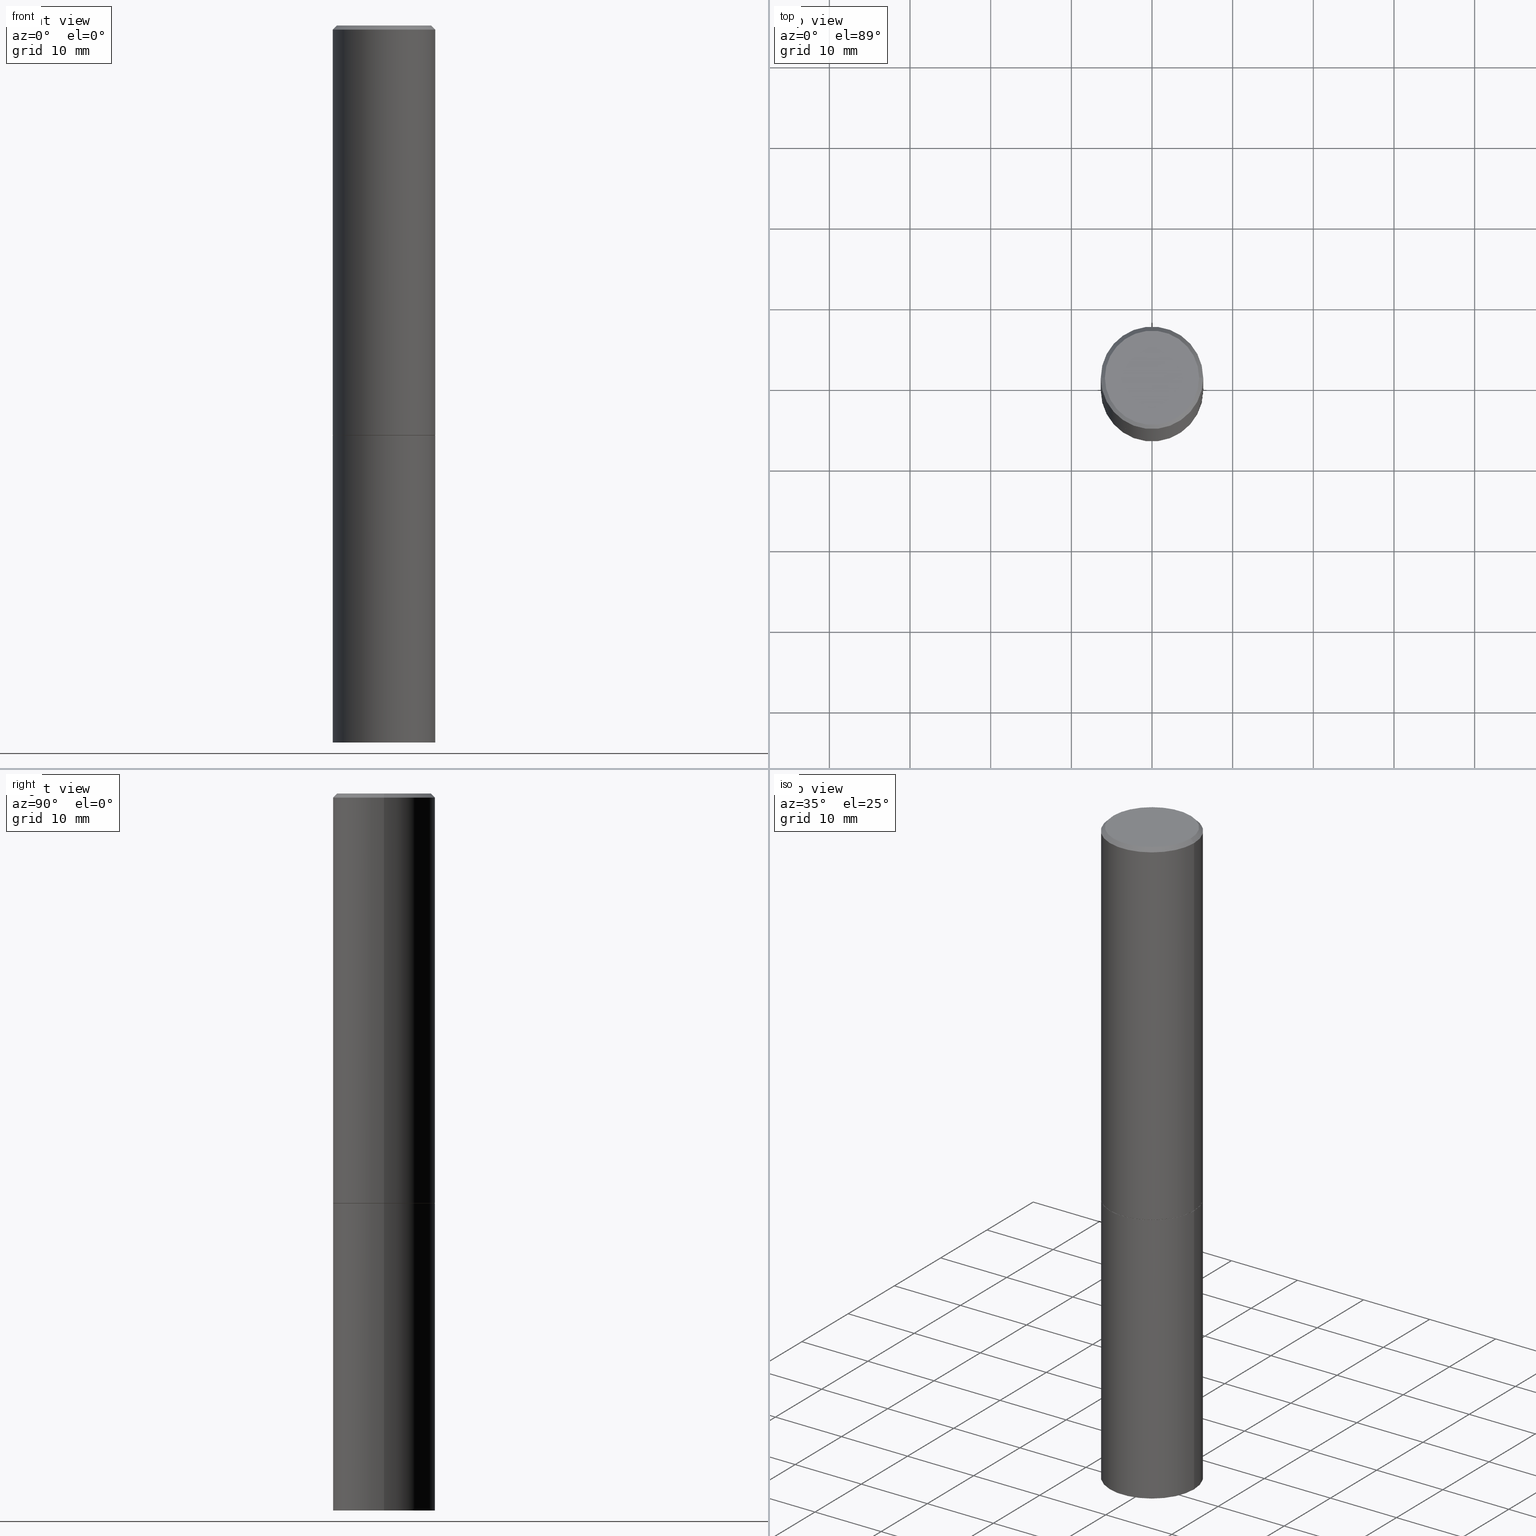
[diagram: canonical four-view strip — front | top / right | iso, engineering-drawing reading convention]
A machine part, canonical four-view strip (front | top / right | iso — engineering-drawing reading convention). The complete STEP part file that produces these views, byte-faithful:
ISO-10303-21;
HEADER;
FILE_DESCRIPTION (( 'STEP AP203' ),
    '1' );
FILE_NAME ('90041.STEP',
    '2024-03-01T02:27:21',
    ( '' ),
    ( '' ),
    'SwSTEP 2.0',
    'SolidWorks 2023',
    '' );
FILE_SCHEMA (( 'CONFIG_CONTROL_DESIGN' ));
ENDSEC;

DATA;
#1 = DIRECTION ( 'NONE',  ( -1.000000000000000000, 6.982962677686265922E-15, -4.876176775795935793E-29 ) ) ;
#2 = APPROVAL ( #315, 'UNSPECIFIED' ) ;
#3 = LINE ( 'NONE', #187, #193 ) ;
#4 = MECHANICAL_CONTEXT ( 'NONE', #62, 'mechanical' ) ;
#5 = CARTESIAN_POINT ( 'NONE',  ( 0.2500000000000000000, -1.745740669421566678E-15, 1.219044193948983948E-29 ) ) ;
#6 = LINE ( 'NONE', #67, #364 ) ;
#7 = CALENDAR_DATE ( 2024, 29, 2 ) ;
#8 = VECTOR ( 'NONE', #93, 39.37007874015748143 ) ;
#9 = CARTESIAN_POINT ( 'NONE',  ( 4.890937612370272073E-29, -6.982962677686288799E-15, -1.999999999999999334 ) ) ;
#10 = ADVANCED_FACE ( 'NONE', ( #282 ), #274, .T. ) ;
#11 = EDGE_CURVE ( 'NONE', #362, #357, #325, .T. ) ;
#12 = AXIS2_PLACEMENT_3D ( 'NONE', #9, #156, #132 ) ;
#13 = AXIS2_PLACEMENT_3D ( 'NONE', #30, #343, #95 ) ;
#14 = ORIENTED_EDGE ( 'NONE', *, *, #331, .F. ) ;
#15 = DIRECTION ( 'NONE',  ( -2.445468806185136597E-29, 3.491481338843145583E-15, 1.000000000000000000 ) ) ;
#16 = DIMENSIONAL_EXPONENTS ( 1.000000000000000000, 0.000000000000000000, 0.000000000000000000, 0.000000000000000000, 0.000000000000000000, 0.000000000000000000, 0.000000000000000000 ) ;
#17 = EDGE_CURVE ( 'NONE', #80, #79, #243, .T. ) ;
#18 = PERSON_AND_ORGANIZATION ( #59, #35 ) ;
#19 = ORIENTED_EDGE ( 'NONE', *, *, #331, .T. ) ;
#20 = EDGE_CURVE ( 'NONE', #90, #362, #123, .T. ) ;
#21 = ORIENTED_EDGE ( 'NONE', *, *, #271, .F. ) ;
#22 = VECTOR ( 'NONE', #262, 39.37007874015748143 ) ;
#23 = CARTESIAN_POINT ( 'NONE',  ( -0.2489999999999999991, -5.208412811295418518E-15, -1.999999999999999334 ) ) ;
#24 = APPROVAL_DATE_TIME ( #296, #220 ) ;
#25 = ORIENTED_EDGE ( 'NONE', *, *, #94, .T. ) ;
#26 = CC_DESIGN_PERSON_AND_ORGANIZATION_ASSIGNMENT ( #285, #186, ( #320 ) ) ;
#27 = DIRECTION ( 'NONE',  ( -1.000000000000000000, 6.982962677686266711E-15, 0.000000000000000000 ) ) ;
#28 = DIRECTION ( 'NONE',  ( -2.445468806185136597E-29, 3.491481338843145583E-15, 1.000000000000000000 ) ) ;
#29 = ORIENTED_EDGE ( 'NONE', *, *, #305, .T. ) ;
#30 = CARTESIAN_POINT ( 'NONE',  ( 0.000000000000000000, 0.000000000000000000, 0.000000000000000000 ) ) ;
#31 = ORIENTED_EDGE ( 'NONE', *, *, #288, .F. ) ;
#32 =( NAMED_UNIT ( * ) PLANE_ANGLE_UNIT ( ) SI_UNIT ( $, .RADIAN. ) );
#33 = APPLICATION_PROTOCOL_DEFINITION ( 'international standard', 'config_control_design', 1994, #62 ) ;
#34 = CARTESIAN_POINT ( 'NONE',  ( 0.000000000000000000, 0.000000000000000000, 0.000000000000000000 ) ) ;
#35 = ORGANIZATION ( 'UNSPECIFIED', 'UNSPECIFIED', '' ) ;
#36 = CC_DESIGN_PERSON_AND_ORGANIZATION_ASSIGNMENT ( #154, #312, ( #344 ) ) ;
#37 = AXIS2_PLACEMENT_3D ( 'NONE', #155, #183, #240 ) ;
#38 = LINE ( 'NONE', #194, #139 ) ;
#39 = ADVANCED_FACE ( 'NONE', ( #332 ), #279, .F. ) ;
#40 = CIRCLE ( 'NONE', #313, 0.2299999999999997324 ) ;
#41 = ORIENTED_EDGE ( 'NONE', *, *, #96, .T. ) ;
#42 = EDGE_CURVE ( 'NONE', #79, #80, #334, .T. ) ;
#43 = DIRECTION ( 'NONE',  ( -2.445468806185136597E-29, 3.491481338843145583E-15, 1.000000000000000000 ) ) ;
#44 = EDGE_LOOP ( 'NONE', ( #114, #363, #19, #265 ) ) ;
#45 = ORIENTED_EDGE ( 'NONE', *, *, #17, .F. ) ;
#46 = CARTESIAN_POINT ( 'NONE',  ( 0.2500000000000000000, -8.725211865769012469E-15, -1.998999999999999666 ) ) ;
#47 = PRODUCT_DEFINITION_SHAPE ( 'NONE', 'NONE',  #344 ) ;
#48 = CIRCLE ( 'NONE', #135, 0.2500000000000000000 ) ;
#49 = AXIS2_PLACEMENT_3D ( 'NONE', #212, #335, #309 ) ;
#50 = ORIENTED_EDGE ( 'NONE', *, *, #305, .F. ) ;
#51 = PERSON_AND_ORGANIZATION_ROLE ( 'classification_officer' ) ;
#52 = EDGE_LOOP ( 'NONE', ( #137, #324 ) ) ;
#53 = APPROVAL_DATE_TIME ( #89, #2 ) ;
#54 = DIRECTION ( 'NONE',  ( 1.000000000000000000, -6.982962677686266711E-15, 0.000000000000000000 ) ) ;
#55 = APPLICATION_PROTOCOL_DEFINITION ( 'international standard', 'config_control_design', 1994, #179 ) ;
#56 = ORIENTED_EDGE ( 'NONE', *, *, #61, .T. ) ;
#57 = FACE_OUTER_BOUND ( 'NONE', #177, .T. ) ;
#58 = UNCERTAINTY_MEASURE_WITH_UNIT (LENGTH_MEASURE( 1.000000000000000082E-05 ), #173, 'distance_accuracy_value', 'NONE');
#59 = PERSON ( 'UNSPECIFIED', 'UNSPECIFIED', 'UNSPECIFIED', ('UNSPECIFIED'), ('UNSPECIFIED'), ('UNSPECIFIED') ) ;
#60 = AXIS2_PLACEMENT_3D ( 'NONE', #338, #336, #299 ) ;
#61 = EDGE_CURVE ( 'NONE', #311, #365, #301, .T. ) ;
#62 = APPLICATION_CONTEXT ( 'configuration controlled 3d designs of mechanical parts and assemblies' ) ;
#63 = CC_DESIGN_PERSON_AND_ORGANIZATION_ASSIGNMENT ( #181, #208, ( #320 ) ) ;
#64 = AXIS2_PLACEMENT_3D ( 'NONE', #126, #86, #54 ) ;
#65 = CC_DESIGN_PERSON_AND_ORGANIZATION_ASSIGNMENT ( #280, #51, ( #70 ) ) ;
#66 = DIRECTION ( 'NONE',  ( 1.000000000000000000, -6.982962677686266711E-15, 0.000000000000000000 ) ) ;
#67 = CARTESIAN_POINT ( 'NONE',  ( -0.2499999999999998890, 1.776356839400249676E-15, -1.229733772563726025E-29 ) ) ;
#68 = CARTESIAN_POINT ( 'NONE',  ( 1.745740669421652072E-15, 0.2499999999999877598, -3.500000000000000888 ) ) ;
#69 = AXIS2_PLACEMENT_3D ( 'NONE', #359, #112, #144 ) ;
#70 = SECURITY_CLASSIFICATION ( '', '', #118 ) ;
#71 = ADVANCED_FACE ( 'NONE', ( #241 ), #233, .T. ) ;
#72 = VERTEX_POINT ( 'NONE', #200 ) ;
#73 = DIRECTION ( 'NONE',  ( 1.000000000000000000, -6.982962677686270655E-15, 0.000000000000000000 ) ) ;
#74 = CALENDAR_DATE ( 2024, 29, 2 ) ;
#75 = AXIS2_PLACEMENT_3D ( 'NONE', #246, #289, #92 ) ;
#76 = APPROVAL_PERSON_ORGANIZATION ( #125, #227, #130 ) ;
#77 = ORIENTED_EDGE ( 'NONE', *, *, #174, .F. ) ;
#78 = FACE_OUTER_BOUND ( 'NONE', #52, .T. ) ;
#79 = VERTEX_POINT ( 'NONE', #23 ) ;
#80 = VERTEX_POINT ( 'NONE', #360 ) ;
#81 = VERTEX_POINT ( 'NONE', #261 ) ;
#82 = ORIENTED_EDGE ( 'NONE', *, *, #42, .F. ) ;
#83 = COORDINATED_UNIVERSAL_TIME_OFFSET ( 5, 0, .BEHIND. ) ;
#84 = EDGE_LOOP ( 'NONE', ( #50, #172 ) ) ;
#85 = AXIS2_PLACEMENT_3D ( 'NONE', #319, #15, #134 ) ;
#86 = DIRECTION ( 'NONE',  ( -2.445468806185136597E-29, 3.491481338843145583E-15, 1.000000000000000000 ) ) ;
#87 = CARTESIAN_POINT ( 'NONE',  ( 0.2499999999999998057, -1.784954126219744611E-15, -0.02000000000000006287 ) ) ;
#88 = ORIENTED_EDGE ( 'NONE', *, *, #216, .T. ) ;
#89 = DATE_AND_TIME ( #337, #353 ) ;
#90 = VERTEX_POINT ( 'NONE', #239 ) ;
#91 = CARTESIAN_POINT ( 'NONE',  ( -0.2500000000000000000, -7.825216842418397817E-15, -1.999999999999999778 ) ) ;
#92 = DIRECTION ( 'NONE',  ( 1.000000000000000000, -6.982962677686266711E-15, 4.876176775795935793E-29 ) ) ;
#93 = DIRECTION ( 'NONE',  ( 0.7071067811865473507, -7.319954787623256045E-15, -0.7071067811865476838 ) ) ;
#94 = EDGE_CURVE ( 'NONE', #365, #207, #103, .T. ) ;
#95 = DIRECTION ( 'NONE',  ( 1.000000000000000000, 0.000000000000000000, 0.000000000000000000 ) ) ;
#96 = EDGE_CURVE ( 'NONE', #81, #311, #40, .T. ) ;
#97 = AXIS2_PLACEMENT_3D ( 'NONE', #201, #266, #149 ) ;
#98 = CARTESIAN_POINT ( 'NONE',  ( 4.890937612370272073E-29, -6.982962677686288799E-15, -1.999999999999999334 ) ) ;
#99 = PERSON_AND_ORGANIZATION ( #59, #35 ) ;
#100 = PRODUCT_RELATED_PRODUCT_CATEGORY ( 'detail', '', ( #339 ) ) ;
#101 = CARTESIAN_POINT ( 'NONE',  ( 0.2499999999999998890, -1.745740669421565889E-15, 1.219044193948983388E-29 ) ) ;
#102 = DIRECTION ( 'NONE',  ( 2.438088387897960049E-29, -3.491481338843145188E-15, -1.000000000000000000 ) ) ;
#103 = CIRCLE ( 'NONE', #49, 0.2499999999999998057 ) ;
#104 = DIRECTION ( 'NONE',  ( 1.000000000000000000, -6.982962677686266711E-15, 0.000000000000000000 ) ) ;
#105 = APPROVAL_PERSON_ORGANIZATION ( #18, #220, #236 ) ;
#106 = CIRCLE ( 'NONE', #60, 0.2499999999999998057 ) ;
#107 = DIRECTION ( 'NONE',  ( -2.438088387897960049E-29, 3.491481338843145188E-15, 1.000000000000000000 ) ) ;
#108 = CARTESIAN_POINT ( 'NONE',  ( 4.888492143564087030E-29, -6.979471196347446580E-15, -1.998999999999999666 ) ) ;
#109 = CLOSED_SHELL ( 'NONE', ( #143, #163, #303, #318 ) ) ;
#110 = ORIENTED_EDGE ( 'NONE', *, *, #165, .F. ) ;
#111 = CARTESIAN_POINT ( 'NONE',  ( -0.2499999999999998057, 1.675911042644702196E-15, -0.02000000000000006287 ) ) ;
#112 = DIRECTION ( 'NONE',  ( -2.445468806185136597E-29, 3.491481338843145583E-15, 1.000000000000000000 ) ) ;
#113 = ORIENTED_EDGE ( 'NONE', *, *, #61, .F. ) ;
#114 = ORIENTED_EDGE ( 'NONE', *, *, #20, .F. ) ;
#115 = CC_DESIGN_PERSON_AND_ORGANIZATION_ASSIGNMENT ( #99, #287, ( #339 ) ) ;
#116 = DIRECTION ( 'NONE',  ( -2.445468806185136877E-29, 3.491481338843145188E-15, 1.000000000000000000 ) ) ;
#117 = CARTESIAN_POINT ( 'NONE',  ( 0.2500000000000000000, -8.728703347107857054E-15, -1.999999999999999778 ) ) ;
#118 = SECURITY_CLASSIFICATION_LEVEL ( 'unclassified' ) ;
#119 = EDGE_LOOP ( 'NONE', ( #77, #228, #142, #31 ) ) ;
#120 = VECTOR ( 'NONE', #222, 39.37007874015748143 ) ;
#121 = COORDINATED_UNIVERSAL_TIME_OFFSET ( 5, 0, .BEHIND. ) ;
#122 = MANIFOLD_SOLID_BREP ( 'Body-Move/Copy2[2]', #267 ) ;
#123 = LINE ( 'NONE', #259, #256 ) ;
#124 = LINE ( 'NONE', #5, #22 ) ;
#125 = PERSON_AND_ORGANIZATION ( #59, #35 ) ;
#126 = CARTESIAN_POINT ( 'NONE',  ( 4.890937612370272073E-29, -6.982962677686288799E-15, -1.999999999999999334 ) ) ;
#127 = COORDINATED_UNIVERSAL_TIME_OFFSET ( 5, 0, .BEHIND. ) ;
#128 = FACE_OUTER_BOUND ( 'NONE', #260, .T. ) ;
#129 = MANIFOLD_SOLID_BREP ( 'Body-Move/Copy2[1]', #109 ) ;
#130 = APPROVAL_ROLE ( '' ) ;
#131 = LOCAL_TIME ( 21, 27, 21.00000000000000000, #83 ) ;
#132 = DIRECTION ( 'NONE',  ( 1.000000000000000000, -6.982962677686266711E-15, 0.000000000000000000 ) ) ;
#133 = CONICAL_SURFACE ( 'NONE', #37, 0.2499999999999998057, 0.7853981633974480570 ) ;
#134 = DIRECTION ( 'NONE',  ( 1.000000000000000000, -6.982962677686266711E-15, 0.000000000000000000 ) ) ;
#135 = AXIS2_PLACEMENT_3D ( 'NONE', #161, #293, #66 ) ;
#136 = PLANE ( 'NONE',  #351 ) ;
#137 = ORIENTED_EDGE ( 'NONE', *, *, #159, .T. ) ;
#138 = CARTESIAN_POINT ( 'NONE',  ( 1.606081415867839292E-15, 0.2299999999999997324, -8.009064516888723911E-16 ) ) ;
#139 = VECTOR ( 'NONE', #321, 39.37007874015748143 ) ;
#140 = DIRECTION ( 'NONE',  ( -0.7071067811865473507, 2.468850131082255088E-15, -0.7071067811865476838 ) ) ;
#141 = DIRECTION ( 'NONE',  ( 1.000000000000000000, -6.982962677686266711E-15, 0.000000000000000000 ) ) ;
#142 = ORIENTED_EDGE ( 'NONE', *, *, #253, .T. ) ;
#143 = ADVANCED_FACE ( 'NONE', ( #128 ), #160, .T. ) ;
#144 = DIRECTION ( 'NONE',  ( 1.000000000000000000, -6.982962677686266711E-15, 4.876225828469314487E-29 ) ) ;
#145 = CARTESIAN_POINT ( 'NONE',  ( 4.890937612370272073E-29, -6.982962677686288799E-15, -1.999999999999999334 ) ) ;
#146 = DIRECTION ( 'NONE',  ( 1.000000000000000000, -6.982962677686266711E-15, 4.876176775795935793E-29 ) ) ;
#147 = ORIENTED_EDGE ( 'NONE', *, *, #199, .F. ) ;
#148 = DIRECTION ( 'NONE',  ( 1.000000000000000000, -6.982962677686266711E-15, 0.000000000000000000 ) ) ;
#149 = DIRECTION ( 'NONE',  ( 1.000000000000000000, -6.982962677686270655E-15, 0.000000000000000000 ) ) ;
#150 = FACE_OUTER_BOUND ( 'NONE', #119, .T. ) ;
#151 = CONICAL_SURFACE ( 'NONE', #230, 0.2489999999999999991, 0.7853981633975507526 ) ;
#152 = CARTESIAN_POINT ( 'NONE',  ( -0.2499999999999998057, 1.675911042644702196E-15, -0.02000000000000006287 ) ) ;
#153 =( LENGTH_UNIT ( ) NAMED_UNIT ( * ) SI_UNIT ( $, .METRE. ) );
#154 = PERSON_AND_ORGANIZATION ( #59, #35 ) ;
#155 = CARTESIAN_POINT ( 'NONE',  ( 4.890937612370288923E-31, -6.982962677686312563E-17, -0.02000000000000006287 ) ) ;
#156 = DIRECTION ( 'NONE',  ( -2.445468806185136597E-29, 3.491481338843145583E-15, 1.000000000000000000 ) ) ;
#157 = AXIS2_PLACEMENT_3D ( 'NONE', #34, #221, #275 ) ;
#158 = LOCAL_TIME ( 21, 27, 21.00000000000000000, #340 ) ;
#159 = EDGE_CURVE ( 'NONE', #357, #362, #48, .T. ) ;
#160 = CYLINDRICAL_SURFACE ( 'NONE', #157, 0.2500000000000000000 ) ;
#161 = CARTESIAN_POINT ( 'NONE',  ( 4.890937612370272633E-29, -6.982962677686290376E-15, -1.999999999999999778 ) ) ;
#162 = CIRCLE ( 'NONE', #185, 0.2500000000000000000 ) ;
#163 = ADVANCED_FACE ( 'NONE', ( #247 ), #191, .T. ) ;
#164 = LOCAL_TIME ( 21, 27, 21.00000000000000000, #127 ) ;
#165 = EDGE_CURVE ( 'NONE', #307, #242, #248, .T. ) ;
#166 = FACE_OUTER_BOUND ( 'NONE', #263, .T. ) ;
#167 = DESIGN_CONTEXT ( 'detailed design', #179, 'design' ) ;
#168 = CIRCLE ( 'NONE', #346, 0.2500000000000000000 ) ;
#169 = EDGE_LOOP ( 'NONE', ( #354, #209, #254, #171 ) ) ;
#170 = CYLINDRICAL_SURFACE ( 'NONE', #75, 0.2499999999999998890 ) ;
#171 = ORIENTED_EDGE ( 'NONE', *, *, #249, .F. ) ;
#172 = ORIENTED_EDGE ( 'NONE', *, *, #190, .F. ) ;
#173 =( CONVERSION_BASED_UNIT ( 'INCH', #210 ) LENGTH_UNIT ( ) NAMED_UNIT ( #16 ) );
#174 = EDGE_CURVE ( 'NONE', #79, #242, #38, .T. ) ;
#175 = AXIS2_PLACEMENT_3D ( 'NONE', #298, #184, #27 ) ;
#176 = ORIENTED_EDGE ( 'NONE', *, *, #249, .T. ) ;
#177 = EDGE_LOOP ( 'NONE', ( #113, #281, #234, #295 ) ) ;
#178 = CARTESIAN_POINT ( 'NONE',  ( 0.2299999999999997324, -1.681434332853597433E-15, 4.268512490111905999E-18 ) ) ;
#179 = APPLICATION_CONTEXT ( 'configuration controlled 3d designs of mechanical parts and assemblies' ) ;
#180 = ORIENTED_EDGE ( 'NONE', *, *, #159, .F. ) ;
#181 = PERSON_AND_ORGANIZATION ( #59, #35 ) ;
#182 = CARTESIAN_POINT ( 'NONE',  ( -1.043851414335219820E-46, 1.490343170380447200E-32, 4.268512490100411279E-18 ) ) ;
#183 = DIRECTION ( 'NONE',  ( 2.445468806185136597E-29, -3.491481338843145583E-15, -1.000000000000000000 ) ) ;
#184 = DIRECTION ( 'NONE',  ( 2.445468806185136597E-29, -3.491481338843145583E-15, -1.000000000000000000 ) ) ;
#185 = AXIS2_PLACEMENT_3D ( 'NONE', #108, #355, #327 ) ;
#186 = PERSON_AND_ORGANIZATION_ROLE ( 'design_supplier' ) ;
#187 = CARTESIAN_POINT ( 'NONE',  ( 0.2489999999999999991, -8.721720384430169462E-15, -1.999999999999999334 ) ) ;
#188 = ADVANCED_FACE ( 'NONE', ( #166 ), #251, .F. ) ;
#189 = APPROVAL_PERSON_ORGANIZATION ( #211, #2, #308 ) ;
#190 = EDGE_CURVE ( 'NONE', #90, #72, #168, .T. ) ;
#191 = PLANE ( 'NONE',  #345 ) ;
#192 = DIRECTION ( 'NONE',  ( -2.445468806185136597E-29, 3.491481338843145583E-15, 1.000000000000000000 ) ) ;
#193 = VECTOR ( 'NONE', #273, 39.37007874015748143 ) ;
#194 = CARTESIAN_POINT ( 'NONE',  ( -0.2489999999999999991, -5.213711265643639342E-15, -1.999999999999999334 ) ) ;
#195 = CIRCLE ( 'NONE', #97, 0.2500000000000000000 ) ;
#196 =( GEOMETRIC_REPRESENTATION_CONTEXT ( 3 ) GLOBAL_UNCERTAINTY_ASSIGNED_CONTEXT ( ( #58 ) ) GLOBAL_UNIT_ASSIGNED_CONTEXT ( ( #173, #32, #326 ) ) REPRESENTATION_CONTEXT ( 'NONE', 'WORKASPACE' ) );
#197 = DATE_AND_TIME ( #74, #131 ) ;
#198 = EDGE_LOOP ( 'NONE', ( #330, #277, #110, #231 ) ) ;
#199 = EDGE_CURVE ( 'NONE', #81, #207, #352, .T. ) ;
#200 = CARTESIAN_POINT ( 'NONE',  ( 0.2500000000000000000, -1.396592535537257602E-14, -3.500000000000000000 ) ) ;
#201 = CARTESIAN_POINT ( 'NONE',  ( 8.559140821647976968E-29, -1.222018468595100934E-14, -3.500000000000000000 ) ) ;
#202 = DIRECTION ( 'NONE',  ( -2.445468806185136597E-29, 3.491481338843145583E-15, 1.000000000000000000 ) ) ;
#203 = AXIS2_PLACEMENT_3D ( 'NONE', #138, #269, #1 ) ;
#204 = CC_DESIGN_SECURITY_CLASSIFICATION ( #70, ( #320 ) ) ;
#205 = EDGE_LOOP ( 'NONE', ( #21, #258, #176, #237 ) ) ;
#206 = DIRECTION ( 'NONE',  ( 1.000000000000000000, -6.982962677686266711E-15, 4.876176775795935793E-29 ) ) ;
#207 = VERTEX_POINT ( 'NONE', #152 ) ;
#208 = PERSON_AND_ORGANIZATION_ROLE ( 'creator' ) ;
#209 = ORIENTED_EDGE ( 'NONE', *, *, #271, .T. ) ;
#210 = LENGTH_MEASURE_WITH_UNIT ( LENGTH_MEASURE( 0.02539999999999999897 ), #153 );
#211 = PERSON_AND_ORGANIZATION ( #59, #35 ) ;
#212 = CARTESIAN_POINT ( 'NONE',  ( 4.890937612370288923E-31, -6.982962677686312563E-17, -0.02000000000000006287 ) ) ;
#213 = DIRECTION ( 'NONE',  ( -1.000000000000000000, 6.982962677686265922E-15, -4.876176775795935793E-29 ) ) ;
#214 = CALENDAR_DATE ( 2024, 29, 2 ) ;
#215 = DATE_TIME_ROLE ( 'creation_date' ) ;
#216 = EDGE_CURVE ( 'NONE', #311, #81, #276, .T. ) ;
#217 = CONICAL_SURFACE ( 'NONE', #12, 0.2489999999999999991, 0.7853981633975507526 ) ;
#218 = LOCAL_TIME ( 21, 27, 21.00000000000000000, #350 ) ;
#219 = LINE ( 'NONE', #101, #120 ) ;
#220 = APPROVAL ( #257, 'UNSPECIFIED' ) ;
#221 = DIRECTION ( 'NONE',  ( -2.445468806185136597E-29, 3.491481338843145583E-15, 1.000000000000000000 ) ) ;
#222 = DIRECTION ( 'NONE',  ( -2.445468806185136877E-29, 3.491481338843145188E-15, 1.000000000000000000 ) ) ;
#223 = DIRECTION ( 'NONE',  ( -1.000000000000000000, 6.982962677686265922E-15, -4.876176775795935793E-29 ) ) ;
#224 = AXIS2_PLACEMENT_3D ( 'NONE', #255, #329, #206 ) ;
#225 = ORIENTED_EDGE ( 'NONE', *, *, #216, .F. ) ;
#226 = DIRECTION ( 'NONE',  ( 1.000000000000000000, -6.982962677686265922E-15, 4.876176775795935793E-29 ) ) ;
#227 = APPROVAL ( #272, 'UNSPECIFIED' ) ;
#228 = ORIENTED_EDGE ( 'NONE', *, *, #42, .T. ) ;
#229 = CARTESIAN_POINT ( 'NONE',  ( 1.745740669421615390E-15, 0.2499999999999930334, -2.000000000000000444 ) ) ;
#230 = AXIS2_PLACEMENT_3D ( 'NONE', #98, #192, #104 ) ;
#231 = ORIENTED_EDGE ( 'NONE', *, *, #253, .F. ) ;
#232 = ADVANCED_FACE ( 'NONE', ( #238 ), #170, .T. ) ;
#233 = CYLINDRICAL_SURFACE ( 'NONE', #224, 0.2499999999999998890 ) ;
#234 = ORIENTED_EDGE ( 'NONE', *, *, #199, .T. ) ;
#235 = CARTESIAN_POINT ( 'NONE',  ( 4.890937612370272633E-29, -6.982962677686290376E-15, -1.999999999999999778 ) ) ;
#236 = APPROVAL_ROLE ( '' ) ;
#237 = ORIENTED_EDGE ( 'NONE', *, *, #358, .F. ) ;
#238 = FACE_OUTER_BOUND ( 'NONE', #205, .T. ) ;
#239 = CARTESIAN_POINT ( 'NONE',  ( -0.2500000000000000000, -7.825216842418397817E-15, -3.500000000000000000 ) ) ;
#240 = DIRECTION ( 'NONE',  ( -1.000000000000000000, 6.982962677686266711E-15, 0.000000000000000000 ) ) ;
#241 = FACE_OUTER_BOUND ( 'NONE', #169, .T. ) ;
#242 = VERTEX_POINT ( 'NONE', #314 ) ;
#243 = CIRCLE ( 'NONE', #286, 0.2489999999999999991 ) ;
#244 = APPROVAL_DATE_TIME ( #268, #227 ) ;
#245 = AXIS2_PLACEMENT_3D ( 'NONE', #361, #28, #146 ) ;
#246 = CARTESIAN_POINT ( 'NONE',  ( 0.000000000000000000, 0.000000000000000000, 0.000000000000000000 ) ) ;
#247 = FACE_OUTER_BOUND ( 'NONE', #84, .T. ) ;
#248 = CIRCLE ( 'NONE', #85, 0.2500000000000000000 ) ;
#249 = EDGE_CURVE ( 'NONE', #307, #365, #219, .T. ) ;
#250 = CARTESIAN_POINT ( 'NONE',  ( 4.890937612370272073E-29, -6.982962677686288799E-15, -1.999999999999999334 ) ) ;
#251 = PLANE ( 'NONE',  #300 ) ;
#252 = ADVANCED_BREP_SHAPE_REPRESENTATION ( '90041', ( #129, #122, #13 ), #196 ) ;
#253 = EDGE_CURVE ( 'NONE', #80, #307, #3, .T. ) ;
#254 = ORIENTED_EDGE ( 'NONE', *, *, #94, .F. ) ;
#255 = CARTESIAN_POINT ( 'NONE',  ( 0.000000000000000000, 0.000000000000000000, 0.000000000000000000 ) ) ;
#256 = VECTOR ( 'NONE', #116, 39.37007874015748143 ) ;
#257 = APPROVAL_STATUS ( 'not_yet_approved' ) ;
#258 = ORIENTED_EDGE ( 'NONE', *, *, #288, .T. ) ;
#259 = CARTESIAN_POINT ( 'NONE',  ( -0.2500000000000000000, 1.776356839400250465E-15, -1.229733772563726445E-29 ) ) ;
#260 = EDGE_LOOP ( 'NONE', ( #29, #310, #180, #14 ) ) ;
#261 = CARTESIAN_POINT ( 'NONE',  ( -0.2299999999999997324, 1.640996229256270744E-15, 4.268512490089056766E-18 ) ) ;
#262 = DIRECTION ( 'NONE',  ( -2.445468806185136877E-29, 3.491481338843145188E-15, 1.000000000000000000 ) ) ;
#263 = EDGE_LOOP ( 'NONE', ( #45, #82 ) ) ;
#264 = ADVANCED_FACE ( 'NONE', ( #150 ), #217, .T. ) ;
#265 = ORIENTED_EDGE ( 'NONE', *, *, #11, .F. ) ;
#266 = DIRECTION ( 'NONE',  ( -2.445468806185136597E-29, 3.491481338843145583E-15, 1.000000000000000000 ) ) ;
#267 = CLOSED_SHELL ( 'NONE', ( #284, #71, #10, #316, #232, #264, #188, #39 ) ) ;
#268 = DATE_AND_TIME ( #7, #158 ) ;
#269 = DIRECTION ( 'NONE',  ( 2.438088387897960049E-29, -3.491481338843145188E-15, -1.000000000000000000 ) ) ;
#270 = CYLINDRICAL_SURFACE ( 'NONE', #245, 0.2500000000000000000 ) ;
#271 = EDGE_CURVE ( 'NONE', #242, #207, #6, .T. ) ;
#272 = APPROVAL_STATUS ( 'not_yet_approved' ) ;
#273 = DIRECTION ( 'NONE',  ( 0.7071067811866199593, -2.468850131083015945E-15, 0.7071067811864750752 ) ) ;
#274 = CONICAL_SURFACE ( 'NONE', #175, 0.2499999999999998057, 0.7853981633974480570 ) ;
#275 = DIRECTION ( 'NONE',  ( 1.000000000000000000, -6.982962677686266711E-15, 4.876176775795935793E-29 ) ) ;
#276 = CIRCLE ( 'NONE', #69, 0.2299999999999997324 ) ;
#277 = ORIENTED_EDGE ( 'NONE', *, *, #174, .T. ) ;
#278 = DIRECTION ( 'NONE',  ( -2.445468806185136597E-29, 3.491481338843145583E-15, 1.000000000000000000 ) ) ;
#279 = PLANE ( 'NONE',  #203 ) ;
#280 = PERSON_AND_ORGANIZATION ( #59, #35 ) ;
#281 = ORIENTED_EDGE ( 'NONE', *, *, #96, .F. ) ;
#282 = FACE_OUTER_BOUND ( 'NONE', #328, .T. ) ;
#283 = FACE_OUTER_BOUND ( 'NONE', #44, .T. ) ;
#284 = ADVANCED_FACE ( 'NONE', ( #342 ), #151, .T. ) ;
#285 = PERSON_AND_ORGANIZATION ( #59, #35 ) ;
#286 = AXIS2_PLACEMENT_3D ( 'NONE', #145, #278, #148 ) ;
#287 = PERSON_AND_ORGANIZATION_ROLE ( 'design_owner' ) ;
#288 = EDGE_CURVE ( 'NONE', #242, #307, #162, .T. ) ;
#289 = DIRECTION ( 'NONE',  ( -2.445468806185136597E-29, 3.491481338843145583E-15, 1.000000000000000000 ) ) ;
#290 = VECTOR ( 'NONE', #140, 39.37007874015748143 ) ;
#291 = CC_DESIGN_APPROVAL ( #220, ( #70 ) ) ;
#292 = DIRECTION ( 'NONE',  ( 1.000000000000000000, -6.982962677686266711E-15, 4.876225828469314487E-29 ) ) ;
#293 = DIRECTION ( 'NONE',  ( -2.445468806185136597E-29, 3.491481338843145583E-15, 1.000000000000000000 ) ) ;
#294 = AXIS2_PLACEMENT_3D ( 'NONE', #235, #202, #141 ) ;
#295 = ORIENTED_EDGE ( 'NONE', *, *, #358, .T. ) ;
#296 = DATE_AND_TIME ( #306, #218 ) ;
#297 = EDGE_LOOP ( 'NONE', ( #41, #88 ) ) ;
#298 = CARTESIAN_POINT ( 'NONE',  ( 4.890937612370288923E-31, -6.982962677686312563E-17, -0.02000000000000006287 ) ) ;
#299 = DIRECTION ( 'NONE',  ( 1.000000000000000000, -6.982962677686266711E-15, 0.000000000000000000 ) ) ;
#300 = AXIS2_PLACEMENT_3D ( 'NONE', #250, #107, #226 ) ;
#301 = LINE ( 'NONE', #341, #8 ) ;
#302 = DIRECTION ( 'NONE',  ( 2.438088387897960049E-29, -3.491481338843145188E-15, -1.000000000000000000 ) ) ;
#303 = ADVANCED_FACE ( 'NONE', ( #78 ), #136, .F. ) ;
#304 = CC_DESIGN_APPROVAL ( #2, ( #320 ) ) ;
#305 = EDGE_CURVE ( 'NONE', #72, #90, #195, .T. ) ;
#306 = CALENDAR_DATE ( 2024, 29, 2 ) ;
#307 = VERTEX_POINT ( 'NONE', #46 ) ;
#308 = APPROVAL_ROLE ( '' ) ;
#309 = DIRECTION ( 'NONE',  ( 1.000000000000000000, -6.982962677686266711E-15, 0.000000000000000000 ) ) ;
#310 = ORIENTED_EDGE ( 'NONE', *, *, #20, .T. ) ;
#311 = VERTEX_POINT ( 'NONE', #178 ) ;
#312 = PERSON_AND_ORGANIZATION_ROLE ( 'creator' ) ;
#313 = AXIS2_PLACEMENT_3D ( 'NONE', #182, #43, #292 ) ;
#314 = CARTESIAN_POINT ( 'NONE',  ( -0.2500000000000000000, -1.748293572161903489E-15, -1.998999999999999666 ) ) ;
#315 = APPROVAL_STATUS ( 'not_yet_approved' ) ;
#316 = ADVANCED_FACE ( 'NONE', ( #57 ), #133, .T. ) ;
#317 = DIRECTION ( 'NONE',  ( -2.445468806185136877E-29, 3.491481338843145188E-15, 1.000000000000000000 ) ) ;
#318 = ADVANCED_FACE ( 'NONE', ( #283 ), #270, .T. ) ;
#319 = CARTESIAN_POINT ( 'NONE',  ( 4.888492143564087030E-29, -6.979471196347446580E-15, -1.998999999999999666 ) ) ;
#320 = PRODUCT_DEFINITION_FORMATION_WITH_SPECIFIED_SOURCE ( 'ANY', '', #339, .NOT_KNOWN. ) ;
#321 = DIRECTION ( 'NONE',  ( -0.7071067811866199593, 7.493145998870616062E-15, 0.7071067811864750752 ) ) ;
#322 = CC_DESIGN_DATE_AND_TIME_ASSIGNMENT ( #197, #333, ( #70 ) ) ;
#323 = DIRECTION ( 'NONE',  ( -2.445468806185136597E-29, 3.491481338843145583E-15, 1.000000000000000000 ) ) ;
#324 = ORIENTED_EDGE ( 'NONE', *, *, #11, .T. ) ;
#325 = CIRCLE ( 'NONE', #294, 0.2500000000000000000 ) ;
#326 =( NAMED_UNIT ( * ) SI_UNIT ( $, .STERADIAN. ) SOLID_ANGLE_UNIT ( ) );
#327 = DIRECTION ( 'NONE',  ( 1.000000000000000000, -6.982962677686266711E-15, 0.000000000000000000 ) ) ;
#328 = EDGE_LOOP ( 'NONE', ( #225, #56, #25, #147 ) ) ;
#329 = DIRECTION ( 'NONE',  ( -2.445468806185136597E-29, 3.491481338843145583E-15, 1.000000000000000000 ) ) ;
#330 = ORIENTED_EDGE ( 'NONE', *, *, #17, .T. ) ;
#331 = EDGE_CURVE ( 'NONE', #72, #357, #124, .T. ) ;
#332 = FACE_OUTER_BOUND ( 'NONE', #297, .T. ) ;
#333 = DATE_TIME_ROLE ( 'classification_date' ) ;
#334 = CIRCLE ( 'NONE', #64, 0.2489999999999999991 ) ;
#335 = DIRECTION ( 'NONE',  ( -2.445468806185136597E-29, 3.491481338843145583E-15, 1.000000000000000000 ) ) ;
#336 = DIRECTION ( 'NONE',  ( -2.445468806185136597E-29, 3.491481338843145583E-15, 1.000000000000000000 ) ) ;
#337 = CALENDAR_DATE ( 2024, 29, 2 ) ;
#338 = CARTESIAN_POINT ( 'NONE',  ( 4.890937612370288923E-31, -6.982962677686312563E-17, -0.02000000000000006287 ) ) ;
#339 = PRODUCT ( '90041', '90041', '', ( #4 ) ) ;
#340 = COORDINATED_UNIVERSAL_TIME_OFFSET ( 5, 0, .BEHIND. ) ;
#341 = CARTESIAN_POINT ( 'NONE',  ( 0.2499999999999998057, -1.784954126219744611E-15, -0.02000000000000006287 ) ) ;
#342 = FACE_OUTER_BOUND ( 'NONE', #198, .T. ) ;
#343 = DIRECTION ( 'NONE',  ( 0.000000000000000000, 0.000000000000000000, 1.000000000000000000 ) ) ;
#344 = PRODUCT_DEFINITION ( 'UNKNOWN', '', #320, #167 ) ;
#345 = AXIS2_PLACEMENT_3D ( 'NONE', #68, #102, #223 ) ;
#346 = AXIS2_PLACEMENT_3D ( 'NONE', #348, #323, #73 ) ;
#347 = CC_DESIGN_APPROVAL ( #227, ( #344 ) ) ;
#348 = CARTESIAN_POINT ( 'NONE',  ( 8.559140821647976968E-29, -1.222018468595100934E-14, -3.500000000000000000 ) ) ;
#349 = CC_DESIGN_DATE_AND_TIME_ASSIGNMENT ( #366, #215, ( #344 ) ) ;
#350 = COORDINATED_UNIVERSAL_TIME_OFFSET ( 5, 0, .BEHIND. ) ;
#351 = AXIS2_PLACEMENT_3D ( 'NONE', #229, #302, #213 ) ;
#352 = LINE ( 'NONE', #111, #290 ) ;
#353 = LOCAL_TIME ( 21, 27, 21.00000000000000000, #121 ) ;
#354 = ORIENTED_EDGE ( 'NONE', *, *, #165, .T. ) ;
#355 = DIRECTION ( 'NONE',  ( -2.445468806185136597E-29, 3.491481338843145583E-15, 1.000000000000000000 ) ) ;
#356 = SHAPE_DEFINITION_REPRESENTATION ( #47, #252 ) ;
#357 = VERTEX_POINT ( 'NONE', #117 ) ;
#358 = EDGE_CURVE ( 'NONE', #207, #365, #106, .T. ) ;
#359 = CARTESIAN_POINT ( 'NONE',  ( -1.043851414335219820E-46, 1.490343170380447200E-32, 4.268512490100411279E-18 ) ) ;
#360 = CARTESIAN_POINT ( 'NONE',  ( 0.2489999999999999991, -8.721720384430169462E-15, -1.999999999999999334 ) ) ;
#361 = CARTESIAN_POINT ( 'NONE',  ( 0.000000000000000000, 0.000000000000000000, 0.000000000000000000 ) ) ;
#362 = VERTEX_POINT ( 'NONE', #91 ) ;
#363 = ORIENTED_EDGE ( 'NONE', *, *, #190, .T. ) ;
#364 = VECTOR ( 'NONE', #317, 39.37007874015748143 ) ;
#365 = VERTEX_POINT ( 'NONE', #87 ) ;
#366 = DATE_AND_TIME ( #214, #164 ) ;
ENDSEC;
END-ISO-10303-21;
